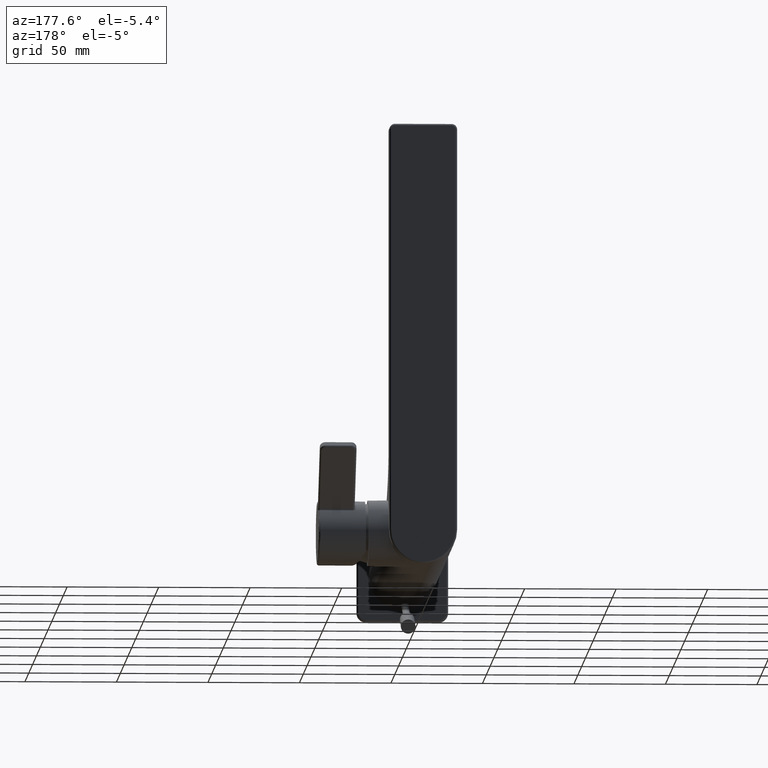
[diagram: clean part render]
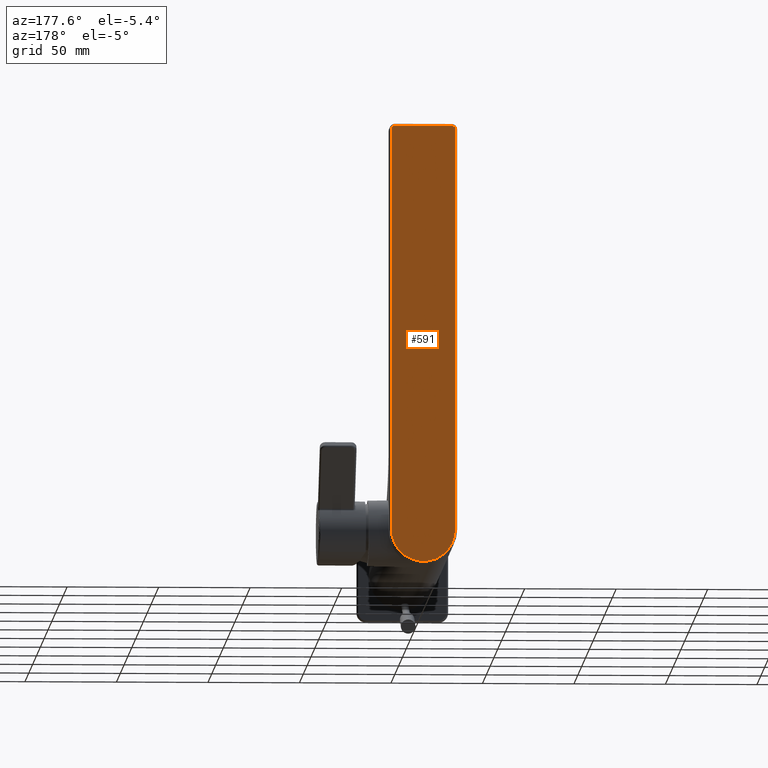
[diagram: same view with one face highlighted and labeled with its STEP entity id]
A machine part, auxiliary view. The second image highlights one B-rep face of the part: STEP entity #591.
In plain terms, the highlighted planar face has unit normal (0, 1, 0).
Its self-contained STEP definition (entity closure, byte-faithful):
#25=CARTESIAN_POINT('',(0.E0,2.725E2,0.E0));
#26=DIRECTION('',(0.E0,1.E0,0.E0));
#27=DIRECTION('',(1.E0,0.E0,0.E0));
#28=AXIS2_PLACEMENT_3D('',#25,#26,#27);
#30=DIRECTION('',(0.E0,0.E0,-1.E0));
#31=VECTOR('',#30,2.195E2);
#32=CARTESIAN_POINT('',(1.75E1,2.725E2,2.195E2));
#33=LINE('',#32,#31);
#34=CARTESIAN_POINT('',(1.55E1,2.725E2,2.195E2));
#35=DIRECTION('',(0.E0,1.E0,0.E0));
#36=DIRECTION('',(0.E0,0.E0,1.E0));
#37=AXIS2_PLACEMENT_3D('',#34,#35,#36);
#39=DIRECTION('',(1.E0,0.E0,1.833658672929E-14));
#40=VECTOR('',#39,3.1E1);
#41=CARTESIAN_POINT('',(-1.55E1,2.725E2,2.215E2));
#42=LINE('',#41,#40);
#43=CARTESIAN_POINT('',(-1.55E1,2.725E2,2.195E2));
#44=DIRECTION('',(0.E0,1.E0,0.E0));
#45=DIRECTION('',(-1.E0,0.E0,0.E0));
#46=AXIS2_PLACEMENT_3D('',#43,#44,#45);
#48=DIRECTION('',(0.E0,0.E0,1.E0));
#49=VECTOR('',#48,2.195E2);
#50=CARTESIAN_POINT('',(-1.75E1,2.725E2,0.E0));
#51=LINE('',#50,#49);
#503=CARTESIAN_POINT('',(1.75E1,2.725E2,0.E0));
#504=CARTESIAN_POINT('',(-1.75E1,2.725E2,0.E0));
#505=VERTEX_POINT('',#503);
#506=VERTEX_POINT('',#504);
#511=CARTESIAN_POINT('',(-1.75E1,2.725E2,2.195E2));
#512=VERTEX_POINT('',#511);
#515=CARTESIAN_POINT('',(-1.55E1,2.725E2,2.215E2));
#516=VERTEX_POINT('',#515);
#519=CARTESIAN_POINT('',(1.55E1,2.725E2,2.215E2));
#520=VERTEX_POINT('',#519);
#523=CARTESIAN_POINT('',(1.75E1,2.725E2,2.195E2));
#524=VERTEX_POINT('',#523);
#572=CARTESIAN_POINT('',(0.E0,2.725E2,0.E0));
#573=DIRECTION('',(0.E0,1.E0,0.E0));
#574=DIRECTION('',(1.E0,0.E0,0.E0));
#575=AXIS2_PLACEMENT_3D('',#572,#573,#574);
#576=PLANE('',#575);
#578=ORIENTED_EDGE('',*,*,#577,.F.);
#580=ORIENTED_EDGE('',*,*,#579,.F.);
#582=ORIENTED_EDGE('',*,*,#581,.F.);
#584=ORIENTED_EDGE('',*,*,#583,.F.);
#586=ORIENTED_EDGE('',*,*,#585,.F.);
#588=ORIENTED_EDGE('',*,*,#587,.F.);
#589=EDGE_LOOP('',(#578,#580,#582,#584,#586,#588));
#590=FACE_OUTER_BOUND('',#589,.F.);
#591=ADVANCED_FACE('',(#590),#576,.T.);
#29=CIRCLE('',#28,1.75E1);
#38=CIRCLE('',#37,2.E0);
#47=CIRCLE('',#46,2.E0);
#577=EDGE_CURVE('',#505,#506,#29,.T.);
#579=EDGE_CURVE('',#524,#505,#33,.T.);
#581=EDGE_CURVE('',#520,#524,#38,.T.);
#583=EDGE_CURVE('',#516,#520,#42,.T.);
#585=EDGE_CURVE('',#512,#516,#47,.T.);
#587=EDGE_CURVE('',#506,#512,#51,.T.);